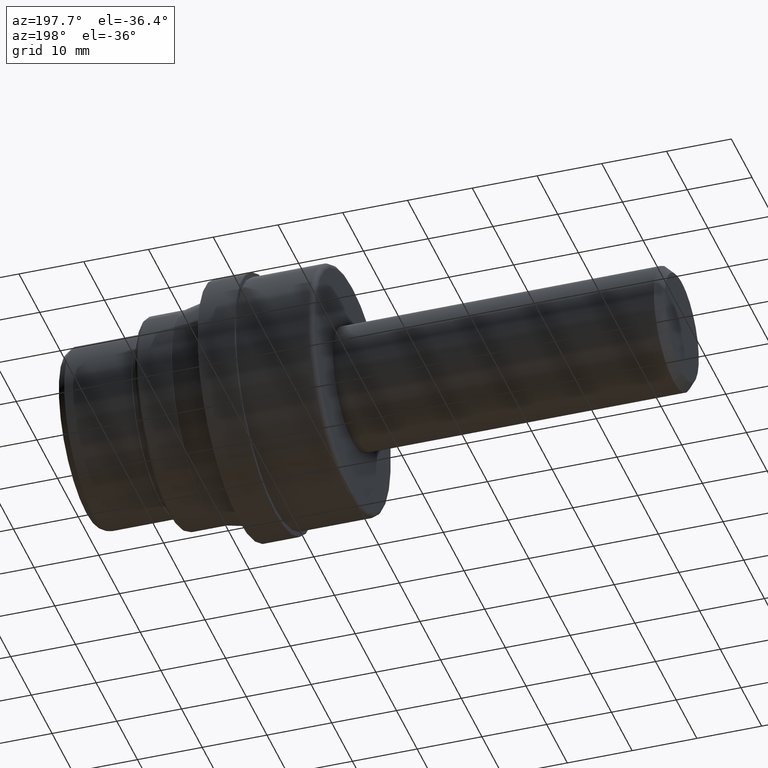
[diagram: clean part render]
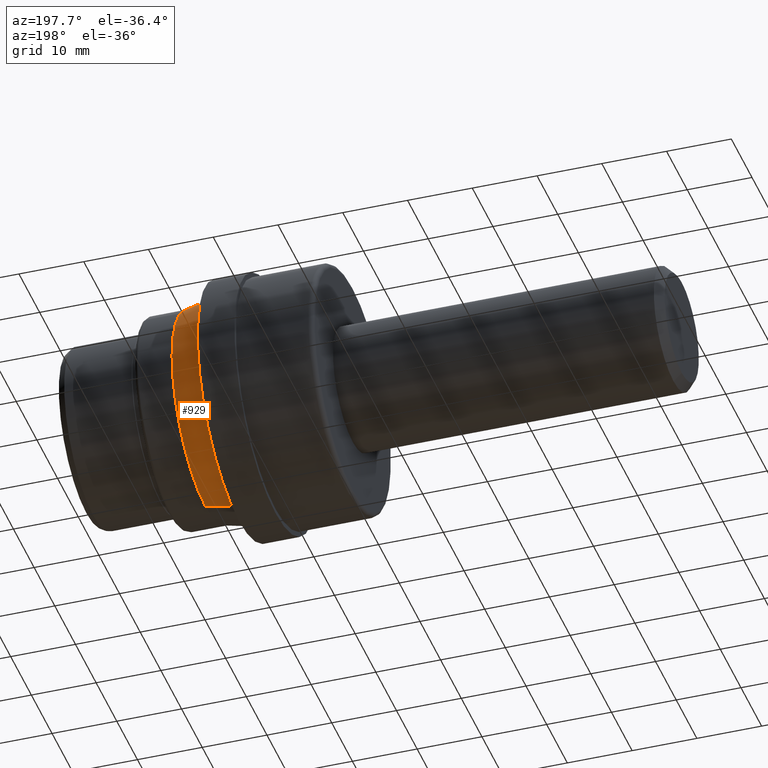
[diagram: same view with one face highlighted and labeled with its STEP entity id]
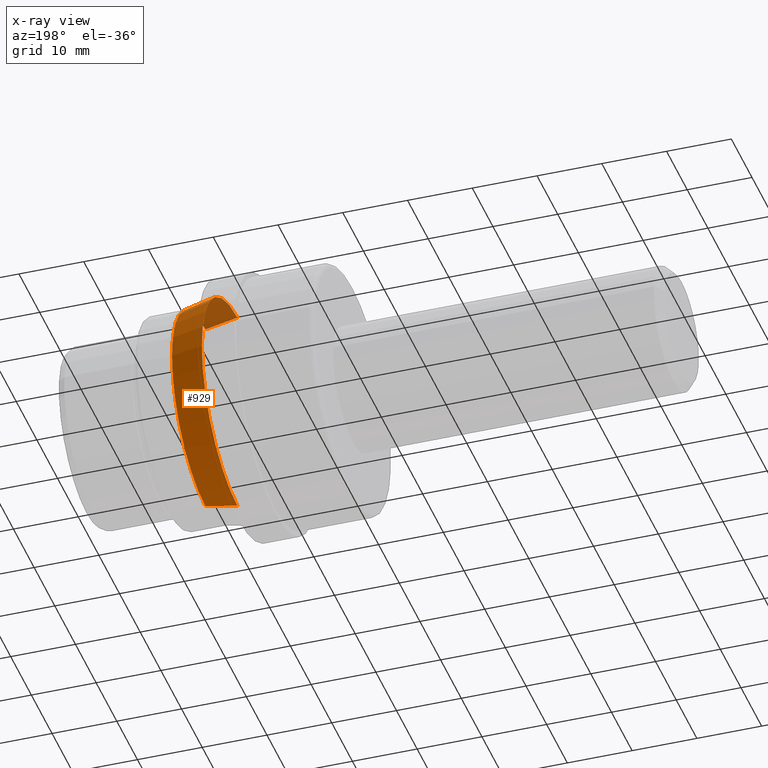
[diagram: x-ray of the same camera — body ghosted, the highlighted face saturated]
A machine part, auxiliary view. The second image highlights one B-rep face of the part: STEP entity #929.
The next image is the same camera in x-ray: the body ghosted, the highlighted face saturated — about 10% of this face is hidden behind the body in this view.
In plain terms, the highlighted conical surface has half-angle 12 deg.
Its self-contained STEP definition (entity closure, byte-faithful):
#3 = ORIENTED_EDGE ( 'NONE', *, *, #726, .T. ) ;
#5 = VECTOR ( 'NONE', #1031, 39.37007874015748854 ) ;
#31 = CARTESIAN_POINT ( 'NONE',  ( 2.895828938860935953, 7.780334088944212976E-17, -0.6353124912718658424 ) ) ;
#86 = EDGE_LOOP ( 'NONE', ( #188, #542, #3, #728 ) ) ;
#93 = AXIS2_PLACEMENT_3D ( 'NONE', #707, #612, #137 ) ;
#103 = CARTESIAN_POINT ( 'NONE',  ( 2.701336706473457472, 8.286610425892697177E-17, -0.6766530914596893265 ) ) ;
#130 = CARTESIAN_POINT ( 'NONE',  ( 2.895828938860935953, 0.0000000000000000000, 0.0000000000000000000 ) ) ;
#137 = DIRECTION ( 'NONE',  ( 0.0000000000000000000, 0.0000000000000000000, 1.000000000000000000 ) ) ;
#183 = CIRCLE ( 'NONE', #359, 0.6766530914596893265 ) ;
#188 = ORIENTED_EDGE ( 'NONE', *, *, #767, .F. ) ;
#218 = DIRECTION ( 'NONE',  ( 0.0000000000000000000, 0.0000000000000000000, -1.000000000000000000 ) ) ;
#250 = CARTESIAN_POINT ( 'NONE',  ( 2.895828938860935953, 7.780334088944226534E-17, 0.6353124912718670636 ) ) ;
#290 = VECTOR ( 'NONE', #502, 39.37007874015748854 ) ;
#298 = EDGE_CURVE ( 'NONE', #357, #337, #523, .T. ) ;
#337 = VERTEX_POINT ( 'NONE', #103 ) ;
#353 = CIRCLE ( 'NONE', #525, 0.6353124912718658424 ) ;
#357 = VERTEX_POINT ( 'NONE', #661 ) ;
#359 = AXIS2_PLACEMENT_3D ( 'NONE', #530, #947, #448 ) ;
#448 = DIRECTION ( 'NONE',  ( 0.0000000000000000000, 0.0000000000000000000, -1.000000000000000000 ) ) ;
#473 = VERTEX_POINT ( 'NONE', #250 ) ;
#502 = DIRECTION ( 'NONE',  ( -0.9781476007337912559, 2.546183866653654440E-17, -0.2079116908178265388 ) ) ;
#523 = LINE ( 'NONE', #31, #290 ) ;
#525 = AXIS2_PLACEMENT_3D ( 'NONE', #130, #687, #218 ) ;
#530 = CARTESIAN_POINT ( 'NONE',  ( 2.701336706473457472, 0.0000000000000000000, 0.0000000000000000000 ) ) ;
#542 = ORIENTED_EDGE ( 'NONE', *, *, #298, .T. ) ;
#611 = CONICAL_SURFACE ( 'NONE', #93, 0.6353124912718658424, 0.2094395102393883101 ) ;
#612 = DIRECTION ( 'NONE',  ( -1.000000000000000000, 0.0000000000000000000, 0.0000000000000000000 ) ) ;
#643 = FACE_OUTER_BOUND ( 'NONE', #86, .T. ) ;
#661 = CARTESIAN_POINT ( 'NONE',  ( 2.895828938860935953, 0.0000000000000000000, -0.6353124912718670636 ) ) ;
#687 = DIRECTION ( 'NONE',  ( 1.000000000000000000, -0.0000000000000000000, -0.0000000000000000000 ) ) ;
#707 = CARTESIAN_POINT ( 'NONE',  ( 2.895828938860935953, 0.0000000000000000000, 0.0000000000000000000 ) ) ;
#726 = EDGE_CURVE ( 'NONE', #337, #911, #183, .T. ) ;
#728 = ORIENTED_EDGE ( 'NONE', *, *, #935, .F. ) ;
#767 = EDGE_CURVE ( 'NONE', #357, #473, #353, .T. ) ;
#854 = LINE ( 'NONE', #949, #5 ) ;
#875 = CARTESIAN_POINT ( 'NONE',  ( 2.701336706473457472, 0.0000000000000000000, 0.6766530914596893265 ) ) ;
#911 = VERTEX_POINT ( 'NONE', #875 ) ;
#929 = ADVANCED_FACE ( 'NONE', ( #643 ), #611, .T. ) ;
#935 = EDGE_CURVE ( 'NONE', #473, #911, #854, .T. ) ;
#947 = DIRECTION ( 'NONE',  ( 1.000000000000000000, -0.0000000000000000000, -0.0000000000000000000 ) ) ;
#949 = CARTESIAN_POINT ( 'NONE',  ( 2.895828938860935953, 0.0000000000000000000, 0.6353124912718658424 ) ) ;
#1031 = DIRECTION ( 'NONE',  ( -0.9781476007337912559, 0.0000000000000000000, 0.2079116908178265388 ) ) ;